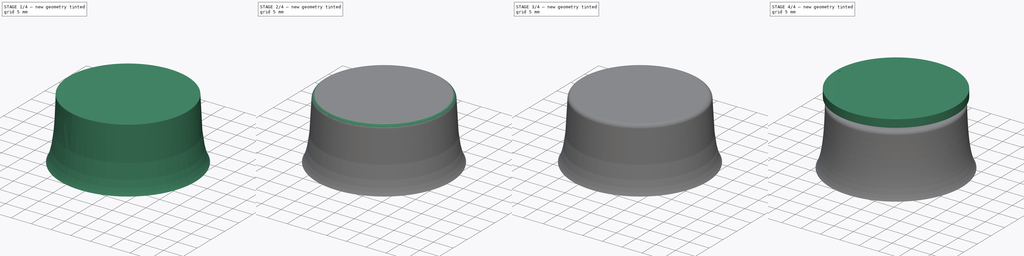
[diagram: build sequence overview — one tinted view per stage of 4, left to right]
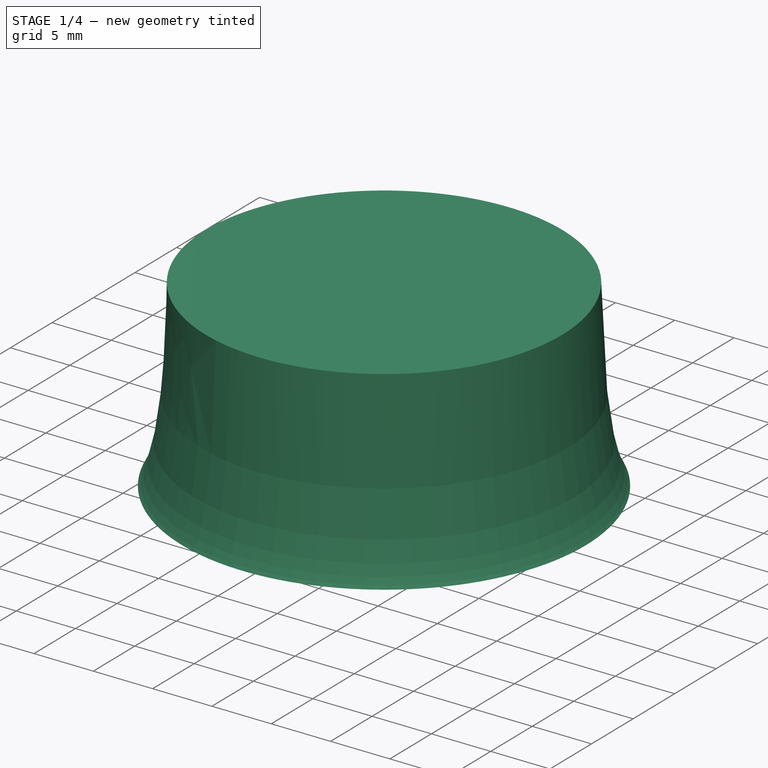
[diagram: stage 1 of 4 — iso view after this stage's code; geometry added in this stage tinted green]
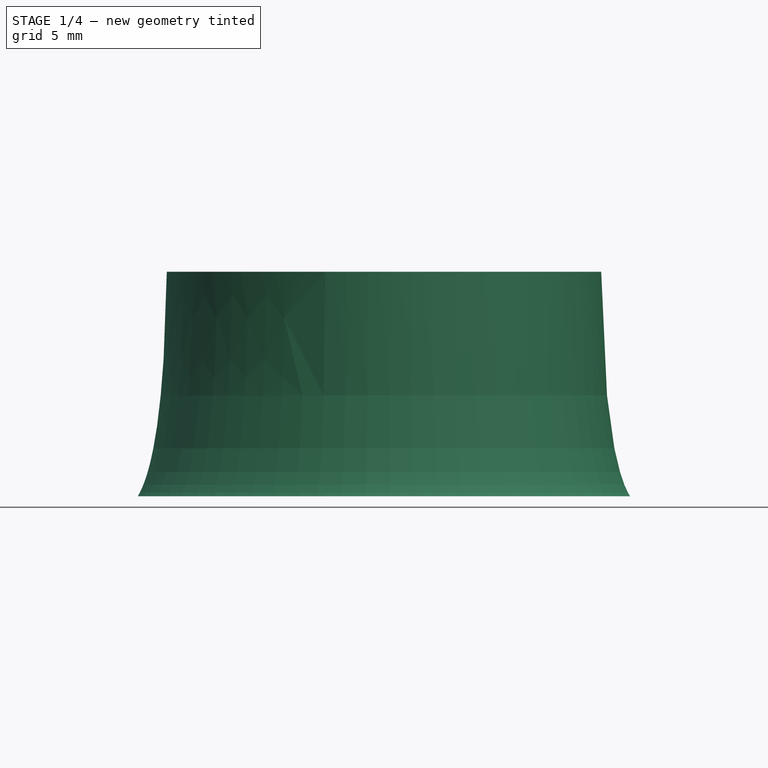
[diagram: stage 1 of 4 — front view after this stage's code; geometry added in this stage tinted green]
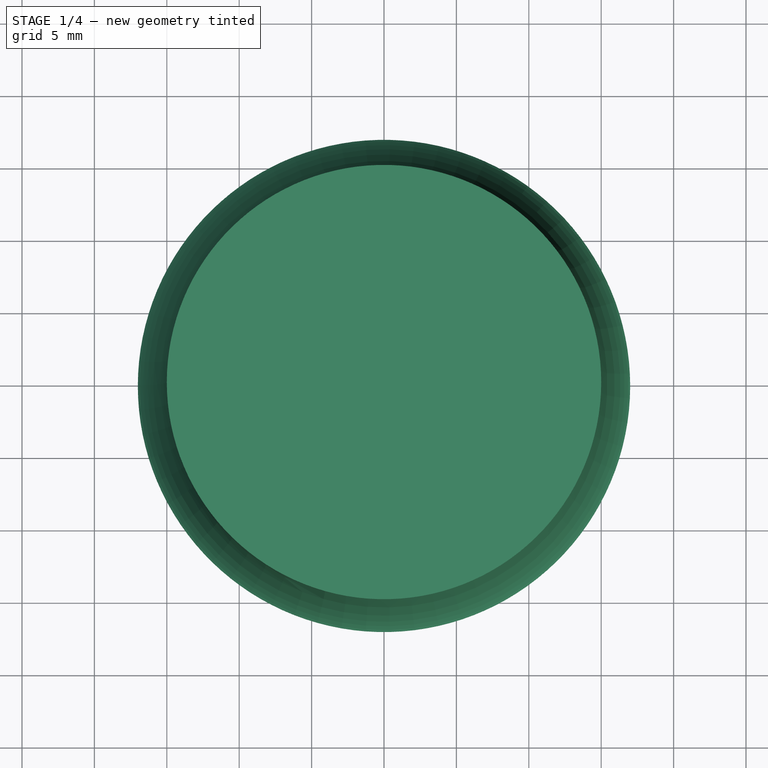
[diagram: stage 1 of 4 — top view after this stage's code; geometry added in this stage tinted green]
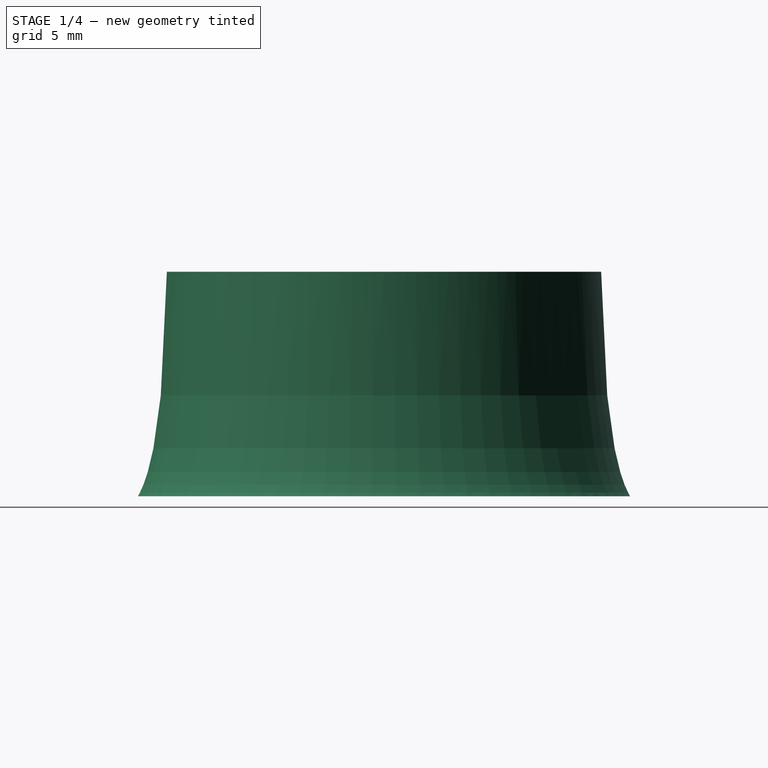
[diagram: stage 1 of 4 — right view after this stage's code; geometry added in this stage tinted green]
FCSTD DOCUMENT  (FreeCAD 0.19R19566 (Git))
Label: colorpicker
License: All rights reserved
LicenseURL: http://en.wikipedia.org/wiki/All_rights_reserved
objects: Sketcher::SketchObject×8, Part::Feature×5, PartDesign::Pad×4, PartDesign::Plane×3, PartDesign::Revolution×2, PartDesign::PolarPattern×2, PartDesign::Line×2, PartDesign::Body×2, PartDesign::Pocket×1, PartDesign::Fillet×1, PartDesign::Mirrored×1, PartDesign::Groove×1
note: 40 computed .brp shape members not serialized (recipe doc carries the construction recipe); baked Part::Feature solids carry a one-line shape summary decoded from their .brp

FEATURE [Sketcher::SketchObject] Sketch
  MapMode = 5
  Placement = pos=(0,0,0) rot=(1,0,0;1.5708rad)
  Support = -> [XZ_Plane]
  sketch-geometry (17):
    g0: LineSegment StartX=-15 StartY=17 StartZ=0 EndX=0 EndY=17 EndZ=0
    g1: LineSegment StartX=-15.8 StartY=1.5 StartZ=0 EndX=-17 EndY=1.5 EndZ=0
    g2: LineSegment StartX=0 StartY=17 StartZ=0 EndX=0 EndY=15.8 EndZ=0
    g3: LineSegment StartX=0 StartY=15.8 StartZ=0 EndX=-13.4 EndY=15.8 EndZ=0
    g4: Circle [constr] CenterX=-15 CenterY=17 CenterZ=0 NormalX=0 NormalY=0 NormalZ=1 AngleXU=0 Radius=1
    g5: Circle [constr] CenterX=-15.1912 CenterY=4.56725 CenterZ=0 NormalX=0 NormalY=0 NormalZ=1 AngleXU=0 Radius=1
    g6: Circle [constr] CenterX=-17 CenterY=1.5 CenterZ=0 NormalX=0 NormalY=0 NormalZ=1 AngleXU=0 Radius=1
    g7: BSplineCurve PolesCount=3 KnotsCount=2 Degree=2 IsPeriodic=0
    g8: GeomPoint [constr] X=-15 Y=17 Z=0
    g9: GeomPoint [constr] X=-17 Y=1.5 Z=0
    g10: Circle [constr] CenterX=-13.4 CenterY=15.8 CenterZ=0 NormalX=0 NormalY=0 NormalZ=1 AngleXU=0 Radius=2
    g11: Circle [constr] CenterX=-13.6 CenterY=4.4 CenterZ=0 NormalX=0 NormalY=0 NormalZ=1 AngleXU=0 Radius=2
    g12: Circle [constr] CenterX=-15.8 CenterY=1.5 CenterZ=0 NormalX=0 NormalY=0 NormalZ=1 AngleXU=0 Radius=2
    g13: BSplineCurve PolesCount=3 KnotsCount=2 Degree=2 IsPeriodic=0
    g14: GeomPoint [constr] X=-13.4 Y=15.8 Z=0
    g15: GeomPoint [constr] X=-15.8 Y=1.5 Z=0
    g16: LineSegment [constr] StartX=-15.1912 StartY=4.56725 StartZ=0 EndX=-13.6 EndY=4.4 EndZ=0
  constraints (40):
    c: Horizontal(g0)
    c: DistanceY(g-1,g0) = 17
    c: DistanceX(g1,g-1) = 17
    c: DistanceY(g-1,g1) = 1.5
    c: Horizontal(g1)
    c: DistanceX(g0,g0) = 15
    c: Coincident(g0,g2)
    c: Coincident(g2,g3)
    c: Horizontal(g3)
    c: Vertical(g2)
    c: PointOnObject(g0,g-2)
    c: DistanceY(g2,g2) = 1.2
    c: Coincident(g7,g0)
    c: Radius(g4) = 1
    c: Equal(g4,g5)
    c: Equal(g4,g6)
    c: Coincident(g7,g1)
    c: InternalAlignment(g4,g7)
    c: InternalAlignment(g5,g7)
    c: InternalAlignment(g6,g7)
    c: InternalAlignment(g8,g7)
    c: InternalAlignment(g9,g7)
    c: Coincident(g13,g3)
    c: Radius(g10) = 2
    c: Equal(g10,g11)
    c: Equal(g10,g12)
    c: InternalAlignment(g10,g13)
    c: InternalAlignment(g11,g13)
    c: InternalAlignment(g12,g13)
    c: InternalAlignment(g14,g13)
    c: InternalAlignment(g15,g13)
    c: Coincident(g13,g1)
    c: Equal(g1,g2)
    c: DistanceX(g0,g3) = 1.6
    c: Distance(g5,g11) = 1.6
    c: Coincident(g16,g5)
    c: Coincident(g16,g11)
    c: Angle(g16,g-1) = 0.10472
    c: DistanceY(g-1,g11) = 4.4
    c: DistanceX(g11,g-1) = 13.6
FEATURE [PartDesign::Revolution] Revolution001
  Angle = 360
  Axis = (0,-2e-16,1)
  Base = (0,0,0)
  Placement = pos=(0,0,0) rot=(1,0,0;1.5708rad)
  Profile = -> Sketch
  ReferenceAxis = -> Sketch [V_Axis]
FEATURE [Part::Feature] Part__Feature004  label="Beinchen2"
  Placement = pos=(0,0,-9.1) rot=(0,0,1;1.5708rad)
  shape: bbox 1.25 x 1.4 x 7.85 mm, 18 faces (baked)
FEATURE [Part::Feature] Part__Feature001  label="Beinchen3"
  Placement = pos=(0,0,-9.1) rot=(0,0,1;1.5708rad)
  shape: bbox 1.25 x 1.4 x 7.85 mm, 18 faces (baked)
FEATURE [Part::Feature] Part__Feature  label="Geh㴳e"
  Placement = pos=(0,0,-9.1) rot=(0,0,1;1.5708rad)
  shape: bbox 15.7 x 12 x 28.5 mm, 67 faces (baked)
FEATURE [Part::Feature] Part__Feature002  label="Beinchen4"
  Placement = pos=(0,0,-9.1) rot=(0,0,1;1.5708rad)
  shape: bbox 1.25 x 1.4 x 7.85 mm, 18 faces (baked)
FEATURE [Part::Feature] Part__Feature003  label="Beinchen1"
  Placement = pos=(0,0,-9.1) rot=(0,0,1;1.5708rad)
  shape: bbox 1.25 x 1.4 x 7.85 mm, 18 faces (baked)
FEATURE [Sketcher::SketchObject] Sketch002
  MapMode = 5
  Placement = pos=(0,-3.5e-15,15.8) rot=(1,0,0;3.14159rad)
  Support = -> [Revolution001]
  sketch-geometry (9):
    g0: LineSegment StartX=-1.5 StartY=2.59808 StartZ=0 EndX=-1.5 EndY=-2.59808 EndZ=0
    g1: ArcOfCircle CenterX=0 CenterY=0 CenterZ=0 NormalX=0 NormalY=0 NormalZ=1 AngleXU=0 Radius=3 StartAngle=4.18879 EndAngle=8.37758
    g2: GeomPoint X=-1.5 Y=0 Z=0
    g3: GeomPoint X=3 Y=0 Z=0
    g4: Circle [constr] CenterX=0 CenterY=0 CenterZ=0 NormalX=0 NormalY=0 NormalZ=1 AngleXU=0 Radius=3
    g5: Circle [constr] CenterX=0 CenterY=0 CenterZ=0 NormalX=0 NormalY=0 NormalZ=1 AngleXU=0 Radius=4
    g6: GeomPoint X=4 Y=0 Z=0
    g7: LineSegment StartX=-2.5 StartY=3.1225 StartZ=0 EndX=-2.5 EndY=-3.1225 EndZ=0
    g8: ArcOfCircle CenterX=0 CenterY=3e-16 CenterZ=0 NormalX=0 NormalY=0 NormalZ=1 AngleXU=0 Radius=4 StartAngle=4.03726 EndAngle=8.52911
  constraints (23):
    c: Vertical(g0)
    c: Coincident(g1,g0)
    c: Coincident(g1,g0)
    c: Coincident(g1,g-1)
    c: PointOnObject(g2,g0)
    c: PointOnObject(g3,g1)
    c: PointOnObject(g2,g-1)
    c: PointOnObject(g3,g-1)
    c: DistanceX(g2,g3) = 4.5
    c: Coincident(g4,g1)
    c: Diameter(g4) = 6
    c: PointOnObject(g0,g4)
    c: Coincident(g5,g1)
    c: PointOnObject(g6,g5)
    c: PointOnObject(g6,g-1)
    c: DistanceX(g3,g6) = 1
    c: PointOnObject(g7,g5)
    c: Vertical(g7)
    c: Coincident(g8,g7)
    c: Coincident(g8,g7)
    c: PointOnObject(g7,g5)
    c: DistanceX(g7,g0) = 1
    c: PointOnObject(g8,g-2)
FEATURE [PartDesign::Pad] Pad  label="Nabe"
  BaseFeature = -> Revolution001
  Length = 8
  Length2 = 100
  Placement = pos=(0,0,0) rot=(1,0,0;1.5708rad)
  Profile = -> Sketch002
  Type = 0
FEATURE [Sketcher::SketchObject] Sketch003
  MapMode = 5
  Placement = pos=(0,0,7.8) rot=(1,0,0;3.14159rad)
  Support = -> [Pad]
  sketch-geometry (5):
    g0: LineSegment StartX=-2.75 StartY=0.5 StartZ=0 EndX=2.75 EndY=0.5 EndZ=0
    g1: LineSegment StartX=2.75 StartY=0.5 StartZ=0 EndX=2.75 EndY=-0.5 EndZ=0
    g2: LineSegment StartX=2.75 StartY=-0.5 StartZ=0 EndX=-2.75 EndY=-0.5 EndZ=0
    g3: LineSegment StartX=-2.75 StartY=-0.5 StartZ=0 EndX=-2.75 EndY=0.5 EndZ=0
    g4: GeomPoint X=0 Y=0 Z=0
  constraints (12):
    c: Coincident(g0,g1)
    c: Coincident(g1,g2)
    c: Coincident(g2,g3)
    c: Coincident(g3,g0)
    c: Horizontal(g0)
    c: Horizontal(g2)
    c: Vertical(g1)
    c: Vertical(g3)
    c: Symmetric(g2,g0,g4)
    c: Coincident(g4,g-1)
    c: DistanceY(g1,g0) = 1
    c: DistanceX(g0,g0) = 5.5
FEATURE [PartDesign::Pocket] Pocket
  BaseFeature = -> Pad
  Length = 8
  Length2 = 100
  Placement = pos=(0,0,0) rot=(1,0,0;1.5708rad)
  Profile = -> Sketch003
  Type = 0
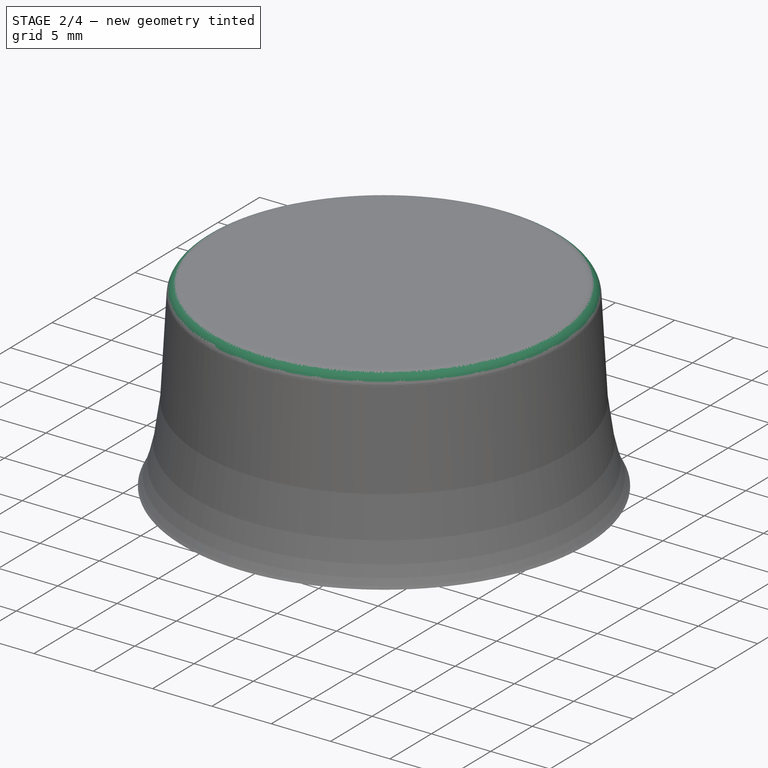
[diagram: stage 2 of 4 — iso view after this stage's code; geometry added in this stage tinted green]
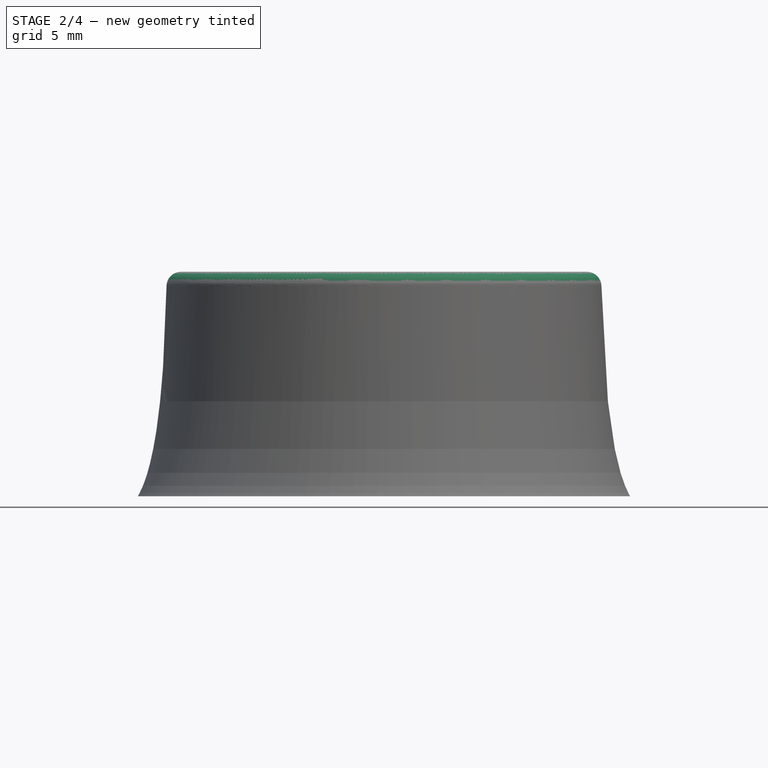
[diagram: stage 2 of 4 — front view after this stage's code; geometry added in this stage tinted green]
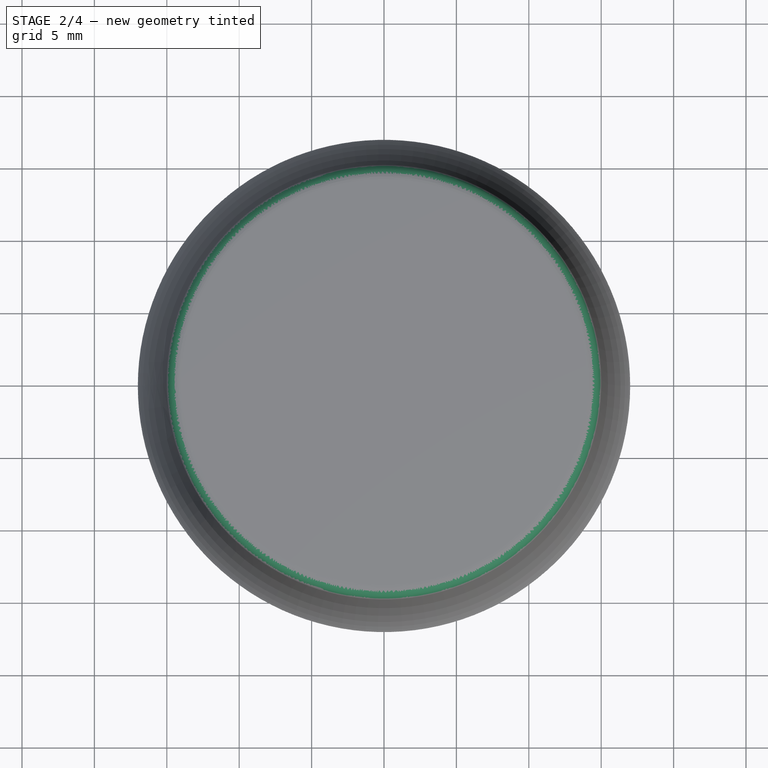
[diagram: stage 2 of 4 — top view after this stage's code; geometry added in this stage tinted green]
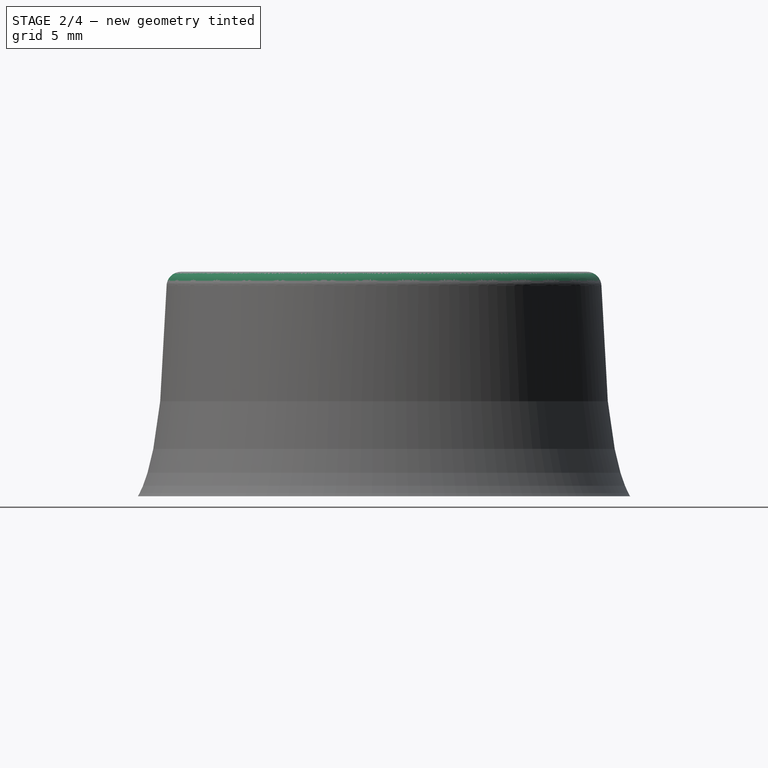
[diagram: stage 2 of 4 — right view after this stage's code; geometry added in this stage tinted green]
FEATURE [PartDesign::Fillet] Fillet001
  Base = -> Pocket [Edge1]
  BaseFeature = -> Pocket
  Placement = pos=(0,0,0) rot=(1,0,0;1.5708rad)
  Radius = 1
FEATURE [Sketcher::SketchObject] Sketch004
  MapMode = 5
  Placement = pos=(0,0,0) rot=(1,0,0;1.5708rad)
  Support = -> [XZ_Plane]
  sketch-geometry (4):
    g0: LineSegment StartX=3.5 StartY=16.2 StartZ=0 EndX=14.1 EndY=16.2 EndZ=0
    g1: LineSegment StartX=14.1 StartY=16.2 StartZ=0 EndX=15.3 EndY=4.1 EndZ=0
    g2: LineSegment StartX=15.3 StartY=4.1 StartZ=0 EndX=3.5 EndY=8.1 EndZ=0
    g3: LineSegment StartX=3.5 StartY=8.1 StartZ=0 EndX=3.5 EndY=16.2 EndZ=0
  constraints (12):
    c: Horizontal(g0)
    c: Coincident(g0,g1)
    c: Coincident(g1,g2)
    c: Coincident(g2,g3)
    c: Coincident(g3,g0)
    c: Vertical(g3)
    c: DistanceY(g-1,g2) = 8.1
    c: DistanceY(g1,g2) = 4
    c: DistanceY(g-1,g0) = 16.2
    c: DistanceX(g-1,g1) = 15.3
    c: DistanceX(g-1,g0) = 14.1
    c: DistanceX(g-1,g2) = 3.5
FEATURE [PartDesign::Pad] Pad001
  BaseFeature = -> Fillet001
  Length = 0.8
  Length2 = 100
  Midplane = true
  Placement = pos=(0,0,0) rot=(1,0,0;1.5708rad)
  Profile = -> Sketch004
  Type = 0
FEATURE [PartDesign::PolarPattern] PolarPattern
  Angle = 120
  Axis = -> Z_Axis
  BaseFeature = -> Pad001
  Occurrences = 4
  Originals = -> [Pad001]
  Placement = pos=(0,0,0) rot=(1,0,0;1.5708rad)
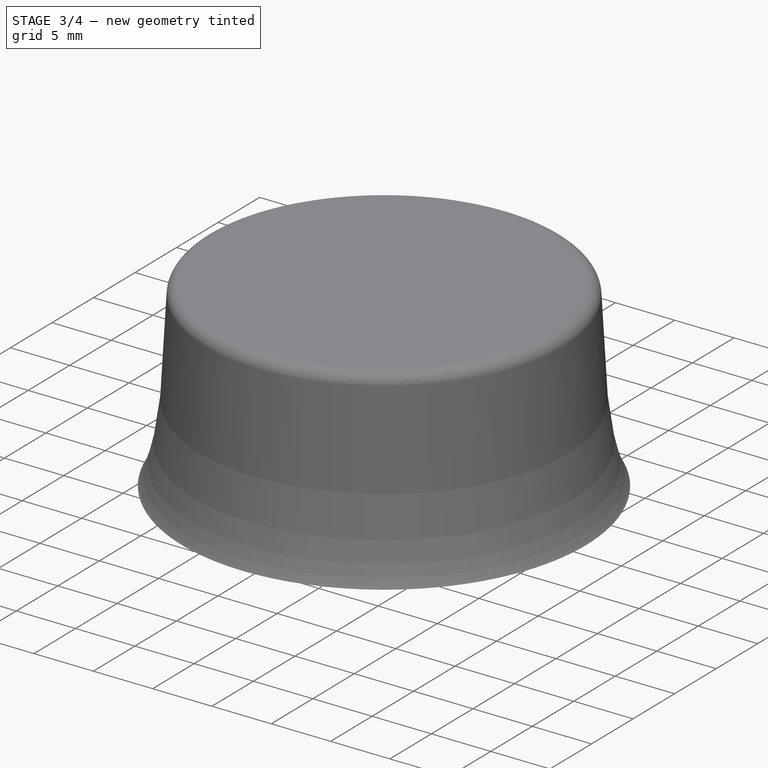
[diagram: stage 3 of 4 — iso view after this stage's code; geometry added in this stage tinted green]
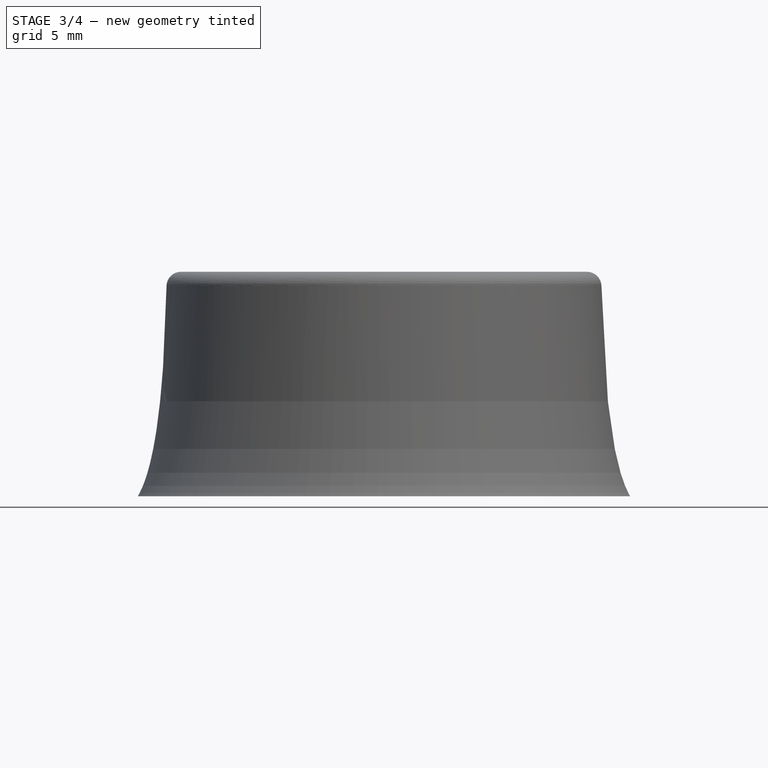
[diagram: stage 3 of 4 — front view after this stage's code; geometry added in this stage tinted green]
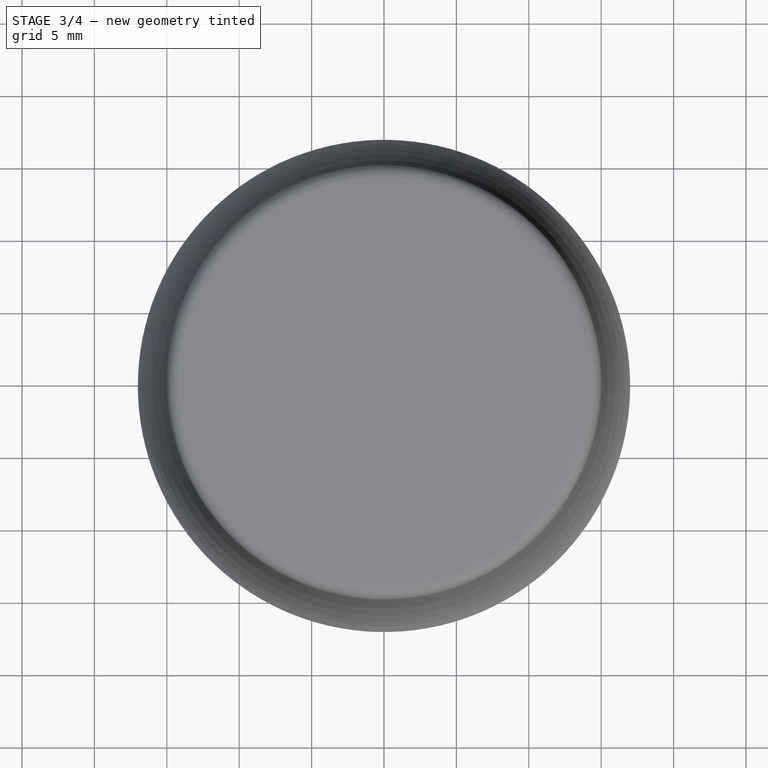
[diagram: stage 3 of 4 — top view after this stage's code; geometry added in this stage tinted green]
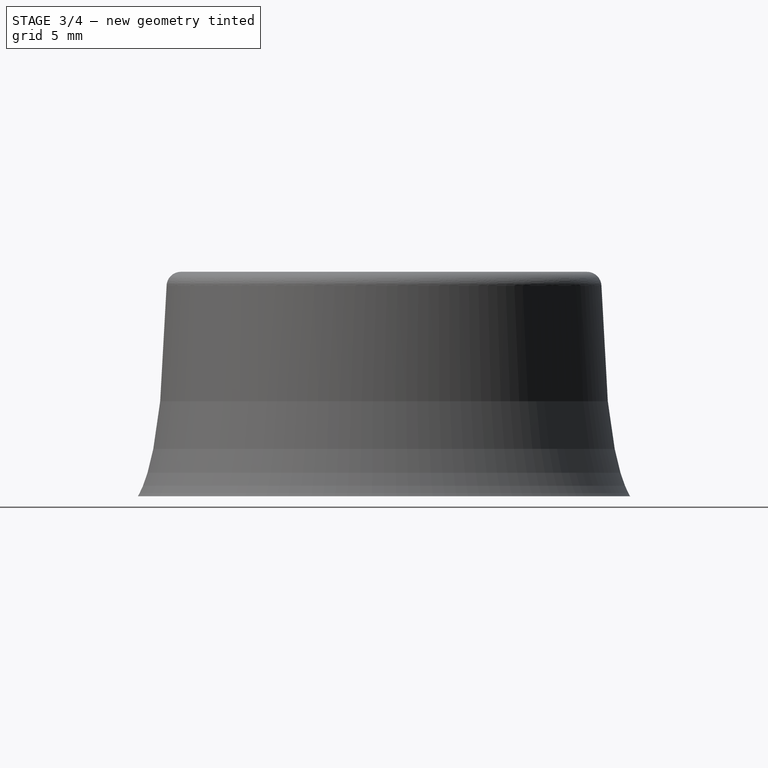
[diagram: stage 3 of 4 — right view after this stage's code; geometry added in this stage tinted green]
FEATURE [PartDesign::PolarPattern] PolarPattern001
  Angle = 120
  Axis = -> Z_Axis
  BaseFeature = -> PolarPattern
  Occurrences = 4
  Originals = -> [Pad001]
  Placement = pos=(0,0,0) rot=(1,0,0;1.5708rad)
  Reversed = true
FEATURE [PartDesign::Plane] DatumPlane
  AttachmentOffset = pos=(0,0,1) rot=(0,1,0;0.314159rad)
  Length = 74.229
  MapMode = 5
  Placement = pos=(0,-1,-2e-16) rot=(0.97582,0.154555,0.154555;1.59527rad)
  ResizeMode = 0
  Support = -> [XZ_Plane]
  Width = 61.2253
FEATURE [Sketcher::SketchObject] Sketch005
  MapMode = 5
  Placement = pos=(0,-1,-2e-16) rot=(0.97582,0.154555,0.154555;1.59527rad)
  Support = -> [DatumPlane]
  sketch-geometry (4):
    g0: LineSegment StartX=-2.2 StartY=16.2 StartZ=0 EndX=-14.1 EndY=16.2 EndZ=0
    g1: LineSegment StartX=-14.1 StartY=16.2 StartZ=0 EndX=-15.3 EndY=4.1 EndZ=0
    g2: LineSegment StartX=-15.3 StartY=4.1 StartZ=0 EndX=-2.2 EndY=8.1 EndZ=0
    g3: LineSegment StartX=-2.2 StartY=8.1 StartZ=0 EndX=-2.2 EndY=16.2 EndZ=0
  constraints (12):
    c: Horizontal(g0)
    c: Coincident(g0,g1)
    c: Coincident(g1,g2)
    c: Coincident(g2,g3)
    c: Coincident(g3,g0)
    c: Vertical(g3)
    c: DistanceX(g0,g-1) = 14.1
    c: DistanceX(g1,g-1) = 15.3
    c: DistanceY(g-1,g2) = 8.1
    c: DistanceY(g-1,g0) = 16.2
    c: DistanceY(g1,g2) = 4
    c: DistanceX(g2,g-1) = 2.2
FEATURE [PartDesign::Pad] Pad002
  BaseFeature = -> PolarPattern001
  Length = 0.8
  Length2 = 100
  Placement = pos=(0,0,0) rot=(1,0,0;1.5708rad)
  Profile = -> Sketch005
  Reversed = true
  Type = 0
FEATURE [PartDesign::Mirrored] Mirrored
  BaseFeature = -> Pad002
  MirrorPlane = -> XZ_Plane
  Originals = -> [Pad002]
  Placement = pos=(0,0,0) rot=(1,0,0;1.5708rad)
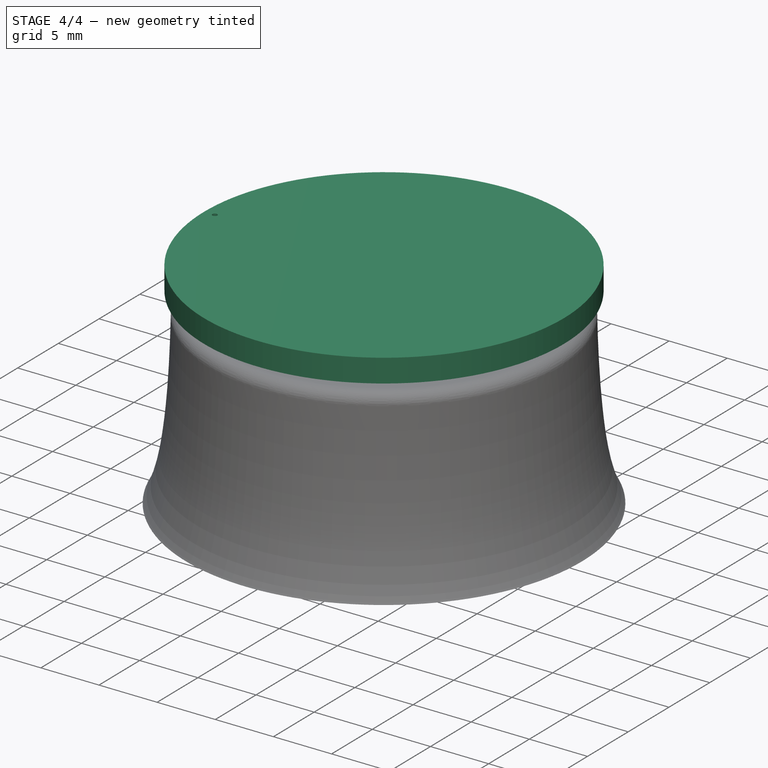
[diagram: stage 4 of 4 — iso view after this stage's code; geometry added in this stage tinted green]
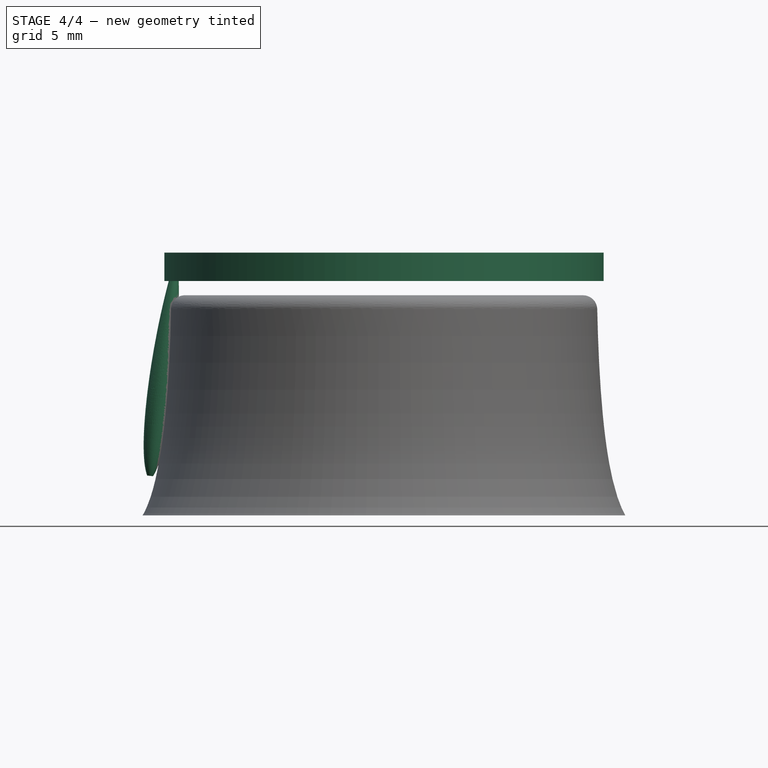
[diagram: stage 4 of 4 — front view after this stage's code; geometry added in this stage tinted green]
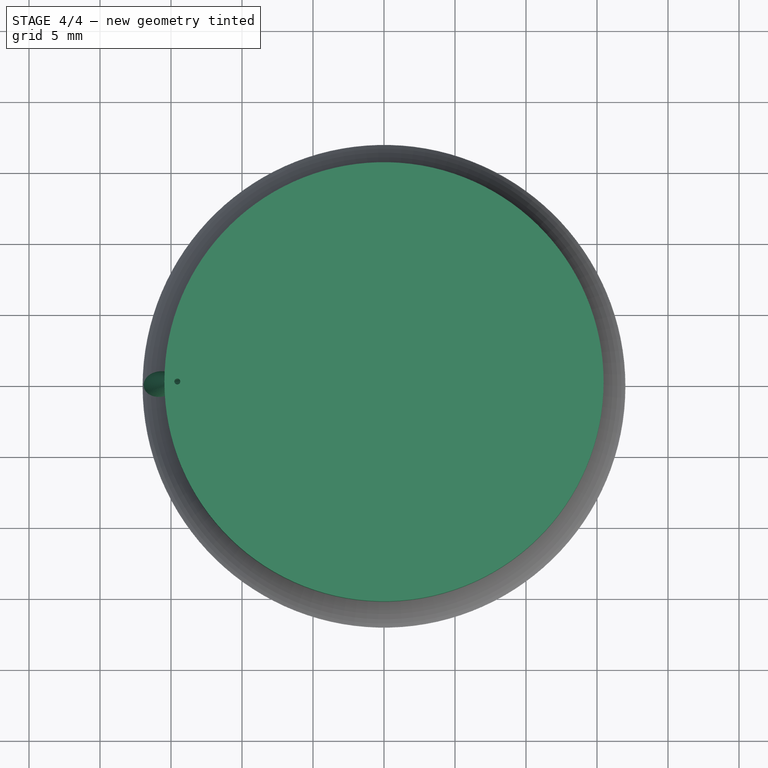
[diagram: stage 4 of 4 — top view after this stage's code; geometry added in this stage tinted green]
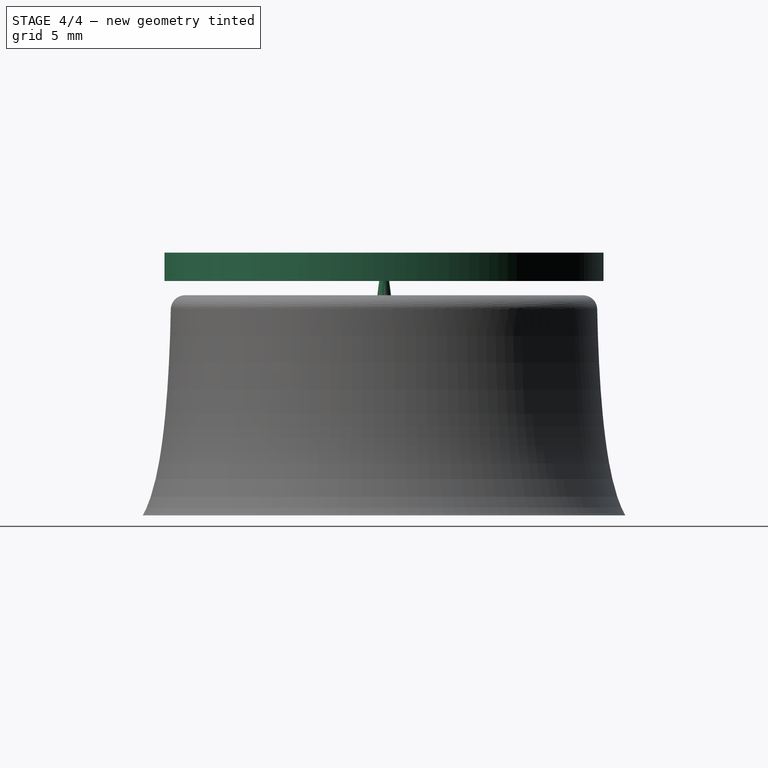
[diagram: stage 4 of 4 — right view after this stage's code; geometry added in this stage tinted green]
FEATURE [PartDesign::Plane] DatumPlane001
  Length = 60
  MapMode = 5
  Placement = pos=(0,0,0) rot=(1,0,0;1.5708rad)
  ResizeMode = 0
  Support = -> [XZ_Plane]
  Width = 60
FEATURE [Sketcher::SketchObject] Sketch006
  MapMode = 5
  Placement = pos=(0,0,0) rot=(1,0,0;1.5708rad)
  Support = -> [DatumPlane001]
  sketch-geometry (8):
    g0: LineSegment StartX=-14.256 StartY=21.1318 StartZ=0 EndX=-16.2737 EndY=4.2565 EndZ=0
    g1-g4: Circle [constr] x4 (B-spline internal-alignment scaffolding for g5; pole/knot coordinates omitted)
    g5: BSplineCurve PolesCount=4 KnotsCount=2 Degree=3 IsPeriodic=0
    g6: GeomPoint [constr] X=-14.256 Y=21.1318 Z=0
    g7: GeomPoint [constr] X=-16.2737 Y=4.2565 Z=0
  constraints (17):
    c: Coincident(g5,g0)
    c: Radius(g1) = 0.9
    c: Equal(g1,g2)
    c: Equal(g1,g3)
    c: Equal(g1,g4)
    c: Coincident(g5,g0)
    c: InternalAlignment(g1-g4 -> g5) x4
    c: InternalAlignment(g6,g5)
    c: InternalAlignment(g7,g5)
    c: DistanceX(g2) = -14.0194
    c: DistanceY(g2) = 16.1173
    c: DistanceX(g0) = -14.256
    c: DistanceY(g0) = 21.1318
    c: DistanceX(g3) = -14.8926
    c: DistanceY(g3) = 6.24191
    c: DistanceX(g0) = -16.2737
    c: DistanceY(g0) = 4.2565
FEATURE [PartDesign::Line] DatumLine
  AttacherType = Attacher::AttachEngineLine
  MapMode = 18
  Placement = pos=(-17,0,0) rot=(0,0.995037,0.099504;0.122173rad)
FEATURE [Sketcher::SketchObject] CopySketch007
  Placement = pos=(0,0,0) rot=(1,0,0;1.5708rad)
  sketch-geometry (8):
    g0: LineSegment StartX=-14.6557 StartY=21.1318 StartZ=0 EndX=-16.2737 EndY=4.2565 EndZ=0
    g1-g4: Circle [constr] x4 (B-spline internal-alignment scaffolding for g5; pole/knot coordinates omitted)
    g5: BSplineCurve PolesCount=4 KnotsCount=2 Degree=3 IsPeriodic=0
    g6: GeomPoint [constr] X=-14.6557 Y=21.1318 Z=0
    g7: GeomPoint [constr] X=-16.2737 Y=4.2565 Z=0
  constraints (17):
    c: Coincident(g5,g0)
    c: Radius(g1) = 0.9
    c: Equal(g1,g2)
    c: Equal(g1,g3)
    c: Equal(g1,g4)
    c: Coincident(g5,g0)
    c: InternalAlignment(g1-g4 -> g5) x4
    c: InternalAlignment(g6,g5)
    c: InternalAlignment(g7,g5)
    c: DistanceX(g2) = -14.0194
    c: DistanceY(g2) = 16.1173
    c: DistanceX(g0) = -14.6557
    c: DistanceY(g0) = 21.1318
    c: DistanceX(g3) = -14.8926
    c: DistanceY(g3) = 6.24191
    c: DistanceX(g0) = -16.2737
    c: DistanceY(g0) = 4.2565
FEATURE [PartDesign::Line] CopyDatumLine003001
  AttacherType = Attacher::AttachEngineLine
  Placement = pos=(-17,0,0) rot=(0,0.995037,0.099504;0.122173rad)
FEATURE [PartDesign::Revolution] Revolution
  Angle = 360
  Axis = (0.121265,0.000738005,0.99262)
  Base = (-17,0,0)
  Placement = pos=(0,0,0) rot=(1,0,0;1.5708rad)
  Profile = -> CopySketch007
  ReferenceAxis = -> CopyDatumLine003001
FEATURE [PartDesign::Plane] DatumPlane002
  AttachmentOffset = pos=(0,0,20) rot=(0,0,1;0rad)
  Length = 60
  MapMode = 2
  Placement = pos=(0,0,20) rot=(0,0,1;0rad)
  ResizeMode = 0
  Support = -> [XY_Plane001]
  Width = 60
FEATURE [Sketcher::SketchObject] Sketch007
  MapMode = 5
  Placement = pos=(0,0,20) rot=(0,0,1;0rad)
  Support = -> [DatumPlane002]
  sketch-geometry (1):
    g0: Circle CenterX=0 CenterY=0 CenterZ=0 NormalX=0 NormalY=0 NormalZ=1 AngleXU=0 Radius=15.4651
  constraints (1):
    c: Coincident(g0,g-1)
FEATURE [PartDesign::Pad] Pad003
  BaseFeature = -> Revolution
  Length = 2
  Length2 = 100
  Placement = pos=(0,0,0) rot=(1,0,0;1.5708rad)
  Profile = -> Sketch007
  Reversed = true
  Type = 0
FEATURE [PartDesign::Body] Body001
  Group = -> [Revolution,CopyDatumLine003001,DatumPlane002,Sketch007,Pad003]
  Origin = -> Origin001
  Tip = -> Pad003
FEATURE [PartDesign::Groove] Groove
  Angle = 360
  Axis = (0.121265,0.000738005,0.99262)
  Base = (-17,0,0)
  BaseFeature = -> Mirrored
  Placement = pos=(0,0,0) rot=(1,0,0;1.5708rad)
  Profile = -> Sketch006
  ReferenceAxis = -> DatumLine
FEATURE [PartDesign::Body] Body  label="Knob"
  Group = -> [Sketch,Revolution001,Sketch002,Pad,Sketch003,Pocket,Fillet001,Sketch004,Pad001,PolarPattern,PolarPattern001,DatumPlane,Sketch005,Pad002,Mirrored,DatumPlane001,Sketch006,DatumLine,Groove]
  Origin = -> Origin
  Tip = -> Groove
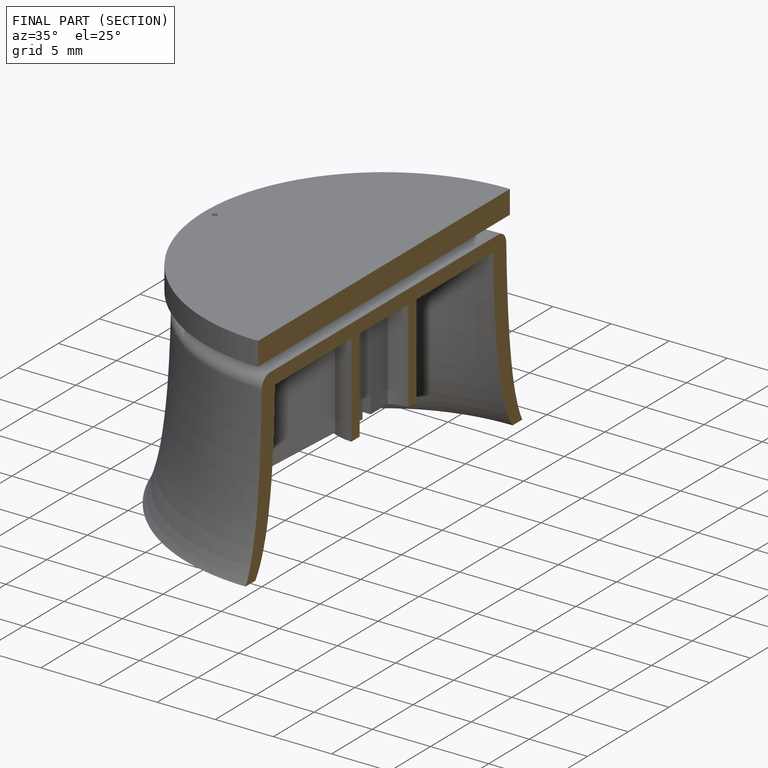
[diagram: finished part — half-section view (interior)]
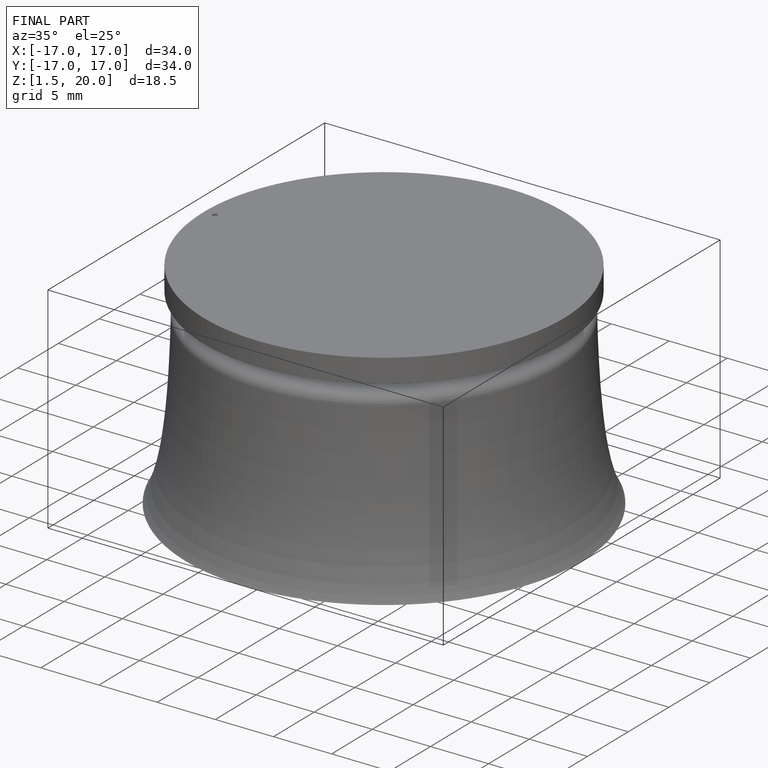
[diagram: finished part — iso view with bounding-box wireframe]
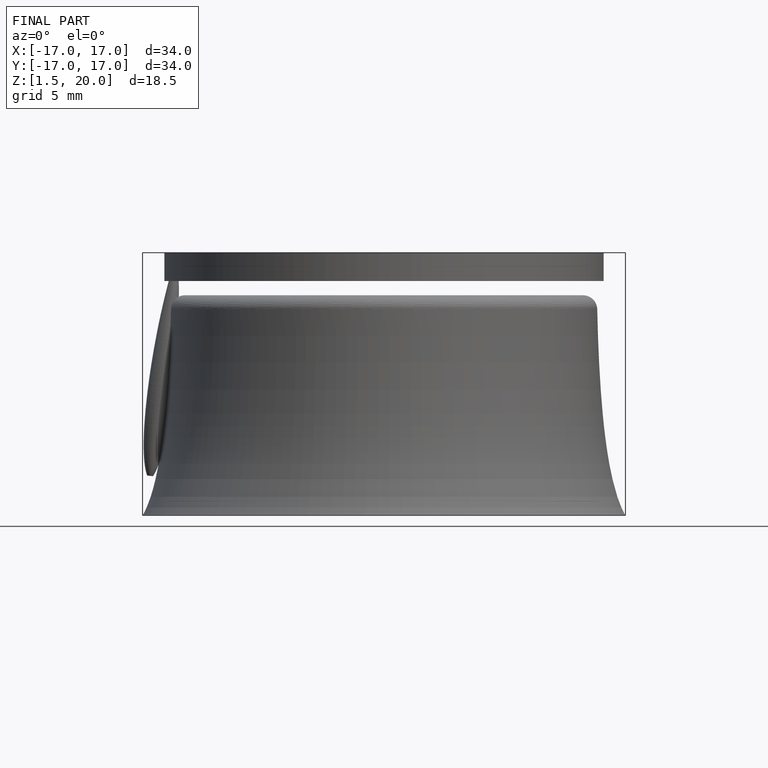
[diagram: finished part — front view with bounding-box wireframe]
